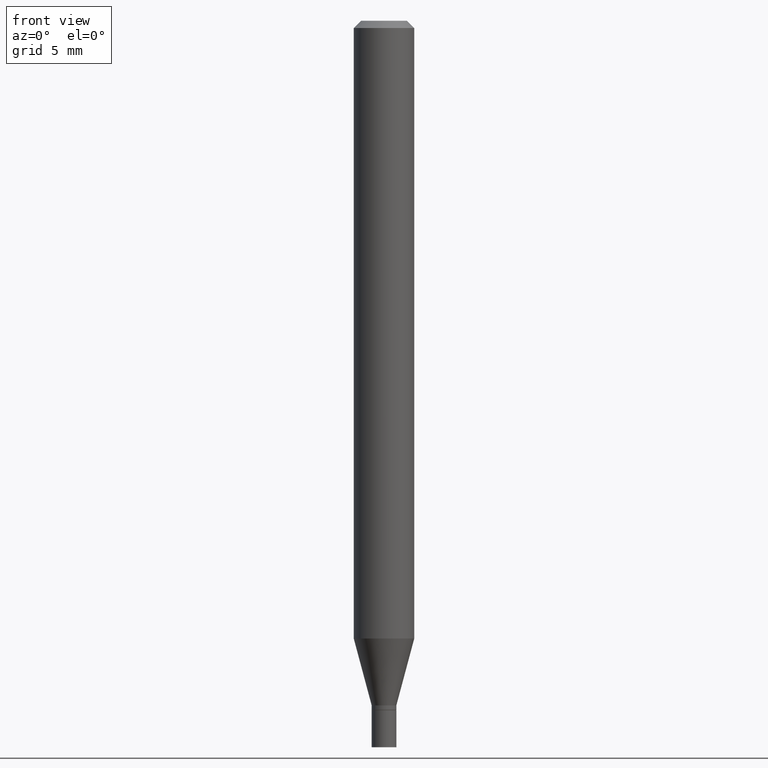
[diagram: clean part render]
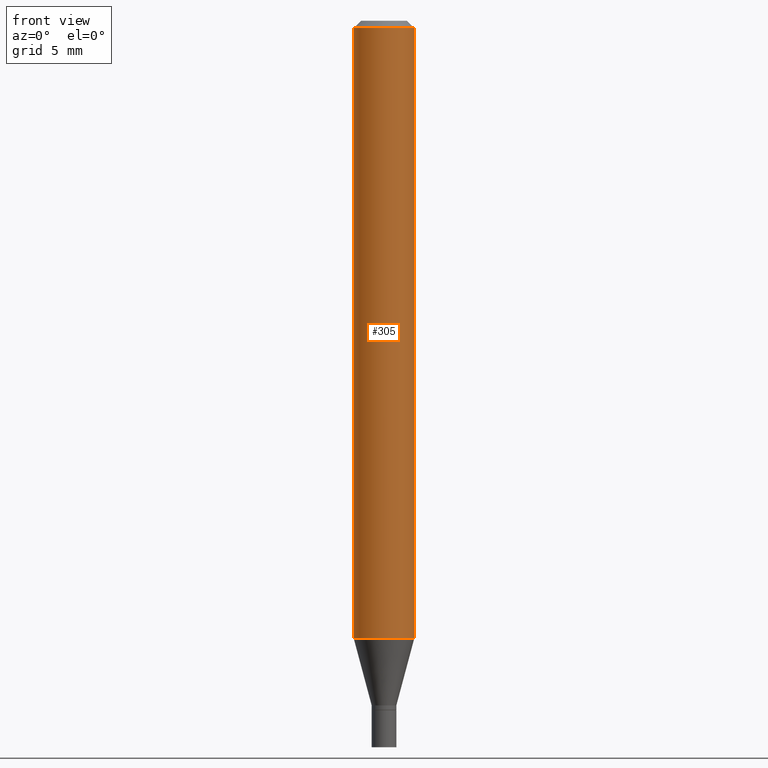
[diagram: same view with one face highlighted and labeled with its STEP entity id]
A machine part, front view. The second image highlights one B-rep face of the part: STEP entity #305.
In plain terms, the highlighted cylindrical surface (edge-blend (fillet) strip) has radius 1.5875 mm, axis along (-0, 0, 1).
Its self-contained STEP definition (entity closure, byte-faithful):
#5 = DIRECTION ( 'NONE',  ( 1.000000000000000000, -6.982962677686266711E-15, 0.000000000000000000 ) ) ;
#30 = CARTESIAN_POINT ( 'NONE',  ( 3.118985445721404190E-29, -4.453084599695860332E-15, -1.275414120119951367 ) ) ;
#40 = CARTESIAN_POINT ( 'NONE',  ( 0.06250000000000000000, -4.888073874380388472E-16, -0.01499999999999999944 ) ) ;
#58 = CARTESIAN_POINT ( 'NONE',  ( 0.06250000000000000000, -4.364351673553916694E-16, 3.047610484872459871E-30 ) ) ;
#63 = VERTEX_POINT ( 'NONE', #281 ) ;
#69 = VECTOR ( 'NONE', #177, 39.37007874015748143 ) ;
#75 = VECTOR ( 'NONE', #351, 39.37007874015748143 ) ;
#78 = DIRECTION ( 'NONE',  ( -2.445468806185136597E-29, 3.491481338843145583E-15, 1.000000000000000000 ) ) ;
#94 = ORIENTED_EDGE ( 'NONE', *, *, #158, .F. ) ;
#95 = ORIENTED_EDGE ( 'NONE', *, *, #214, .F. ) ;
#129 = CIRCLE ( 'NONE', #342, 0.06250000000000000000 ) ;
#138 = LINE ( 'NONE', #329, #69 ) ;
#145 = CYLINDRICAL_SURFACE ( 'NONE', #337, 0.06250000000000000000 ) ;
#158 = EDGE_CURVE ( 'NONE', #63, #335, #138, .T. ) ;
#165 = LINE ( 'NONE', #58, #75 ) ;
#167 = EDGE_LOOP ( 'NONE', ( #94, #308, #190, #95 ) ) ;
#177 = DIRECTION ( 'NONE',  ( -2.445468806185136877E-29, 3.491481338843145188E-15, 1.000000000000000000 ) ) ;
#178 = DIRECTION ( 'NONE',  ( 1.000000000000000000, -6.982962677686262766E-15, 0.000000000000000000 ) ) ;
#190 = ORIENTED_EDGE ( 'NONE', *, *, #447, .T. ) ;
#198 = DIRECTION ( 'NONE',  ( 1.000000000000000000, -6.982962677686266711E-15, 4.876176775795935793E-29 ) ) ;
#214 = EDGE_CURVE ( 'NONE', #335, #233, #306, .T. ) ;
#233 = VERTEX_POINT ( 'NONE', #40 ) ;
#240 = FACE_OUTER_BOUND ( 'NONE', #167, .T. ) ;
#253 = VERTEX_POINT ( 'NONE', #399 ) ;
#271 = CARTESIAN_POINT ( 'NONE',  ( -0.06250000000000000000, -1.808639200039190892E-15, -0.01499999999999999944 ) ) ;
#281 = CARTESIAN_POINT ( 'NONE',  ( -0.06250000000000000000, -4.008995389845797716E-15, -1.275414120119951367 ) ) ;
#284 = DIRECTION ( 'NONE',  ( -2.445468806185136597E-29, 3.491481338843145583E-15, 1.000000000000000000 ) ) ;
#289 = CARTESIAN_POINT ( 'NONE',  ( 3.668203209277705088E-31, -5.237222008264718399E-17, -0.01499999999999999944 ) ) ;
#305 = ADVANCED_FACE ( 'NONE', ( #240 ), #145, .T. ) ;
#306 = CIRCLE ( 'NONE', #361, 0.06250000000000000000 ) ;
#308 = ORIENTED_EDGE ( 'NONE', *, *, #452, .T. ) ;
#329 = CARTESIAN_POINT ( 'NONE',  ( -0.06250000000000000000, 4.440892098500626162E-16, -3.074334431409316114E-30 ) ) ;
#335 = VERTEX_POINT ( 'NONE', #271 ) ;
#337 = AXIS2_PLACEMENT_3D ( 'NONE', #392, #284, #198 ) ;
#342 = AXIS2_PLACEMENT_3D ( 'NONE', #30, #348, #178 ) ;
#348 = DIRECTION ( 'NONE',  ( -2.445468806185136597E-29, 3.491481338843145583E-15, 1.000000000000000000 ) ) ;
#351 = DIRECTION ( 'NONE',  ( -2.445468806185136877E-29, 3.491481338843145188E-15, 1.000000000000000000 ) ) ;
#361 = AXIS2_PLACEMENT_3D ( 'NONE', #289, #78, #5 ) ;
#392 = CARTESIAN_POINT ( 'NONE',  ( 0.000000000000000000, 0.000000000000000000, 0.000000000000000000 ) ) ;
#399 = CARTESIAN_POINT ( 'NONE',  ( 0.06250000000000000000, -4.889519767051251212E-15, -1.275414120119951367 ) ) ;
#447 = EDGE_CURVE ( 'NONE', #253, #233, #165, .T. ) ;
#452 = EDGE_CURVE ( 'NONE', #63, #253, #129, .T. ) ;